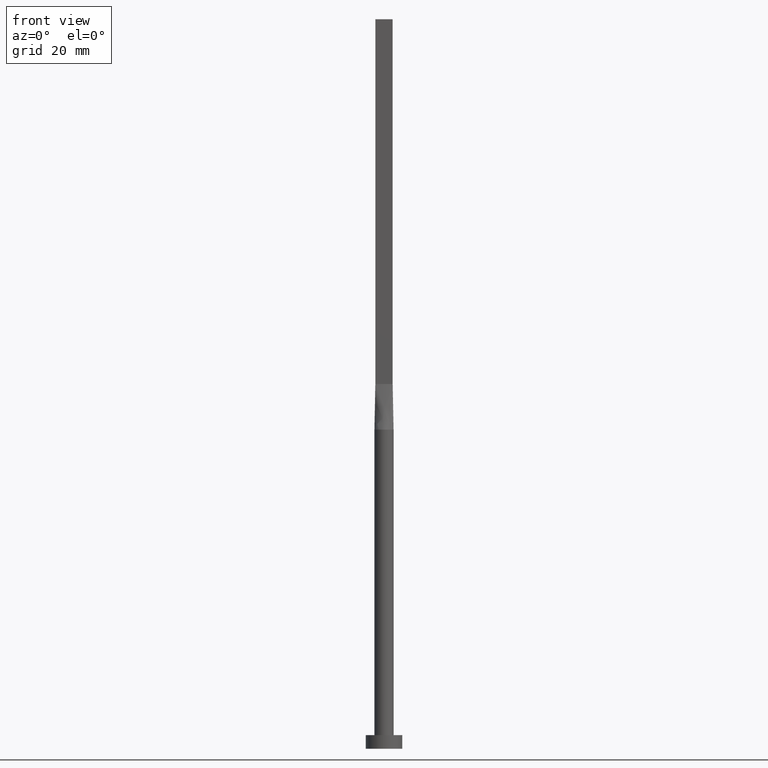
[diagram: clean part render]
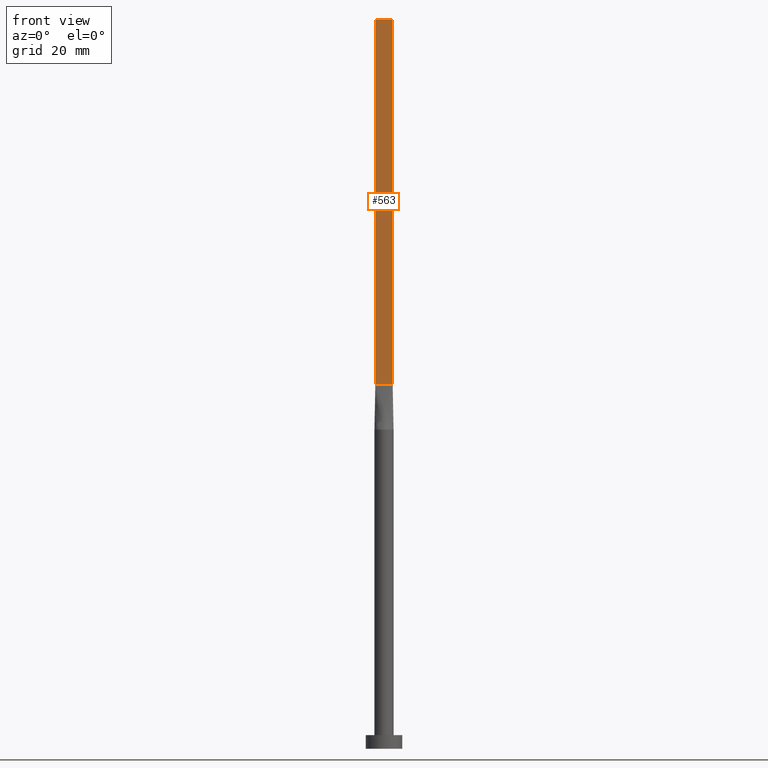
[diagram: same view with one face highlighted and labeled with its STEP entity id]
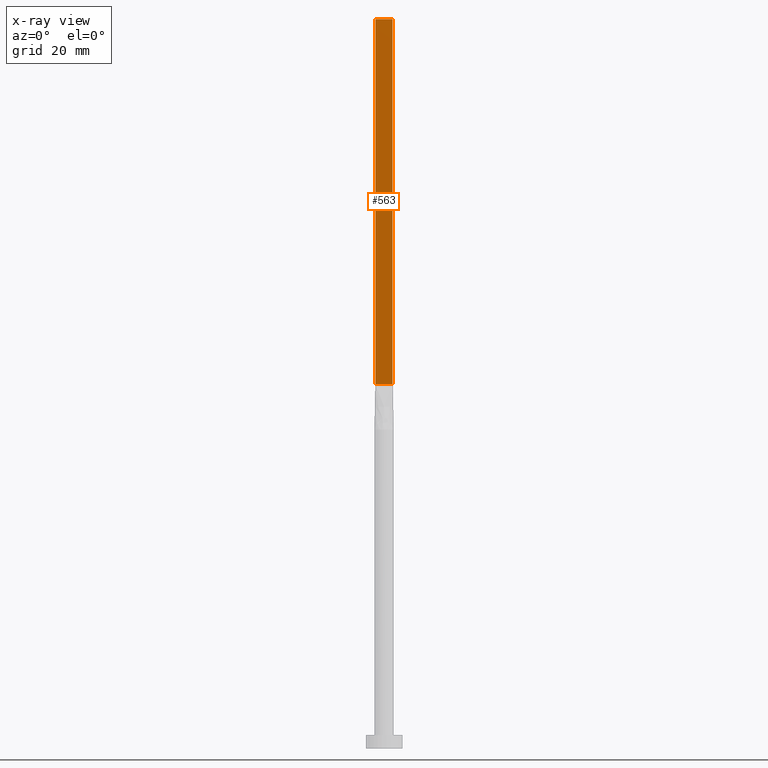
[diagram: x-ray of the same camera — body ghosted, the highlighted face saturated]
A machine part, front view. The second image highlights one B-rep face of the part: STEP entity #563.
The next image is the same camera in x-ray: the body ghosted, the highlighted face saturated — about 0% of this face is hidden behind the body in this view.
In plain terms, the highlighted planar face has unit normal (0, 1, -0).
Its self-contained STEP definition (entity closure, byte-faithful):
#14 = AXIS2_PLACEMENT_3D ( 'NONE', #229, #189, #356 ) ;
#34 = CARTESIAN_POINT ( 'NONE',  ( -1.899999999999999911, -0.2499999999999995837, 160.0000000000000000 ) ) ;
#47 = EDGE_LOOP ( 'NONE', ( #129, #495, #311, #297 ) ) ;
#69 = LINE ( 'NONE', #111, #339 ) ;
#71 = DIRECTION ( 'NONE',  ( -0.000000000000000000, -0.000000000000000000, -1.000000000000000000 ) ) ;
#83 = CARTESIAN_POINT ( 'NONE',  ( 1.899999999999999023, -0.2499999999999997780, 160.0000000000000000 ) ) ;
#88 = DIRECTION ( 'NONE',  ( -0.000000000000000000, -0.000000000000000000, -1.000000000000000000 ) ) ;
#111 = CARTESIAN_POINT ( 'NONE',  ( 1.899999999999999023, -0.2499999999999997780, 160.0000000000000000 ) ) ;
#115 = VECTOR ( 'NONE', #88, 1000.000000000000000 ) ;
#117 = EDGE_CURVE ( 'NONE', #238, #322, #69, .T. ) ;
#129 = ORIENTED_EDGE ( 'NONE', *, *, #328, .T. ) ;
#148 = VECTOR ( 'NONE', #435, 1000.000000000000000 ) ;
#181 = PLANE ( 'NONE',  #14 ) ;
#189 = DIRECTION ( 'NONE',  ( 5.706327223607918787E-17, 1.000000000000000000, -0.000000000000000000 ) ) ;
#215 = CARTESIAN_POINT ( 'NONE',  ( 1.899999999999999023, -0.2499999999999997780, 80.00000000000000000 ) ) ;
#217 = VERTEX_POINT ( 'NONE', #489 ) ;
#218 = CARTESIAN_POINT ( 'NONE',  ( -1.899999999999999911, -0.2499999999999995837, 160.0000000000000000 ) ) ;
#220 = CARTESIAN_POINT ( 'NONE',  ( -1.899999999999999911, -0.2499999999999995837, 160.0000000000000000 ) ) ;
#229 = CARTESIAN_POINT ( 'NONE',  ( -1.899999999999999911, -0.2499999999999995837, 160.0000000000000000 ) ) ;
#238 = VERTEX_POINT ( 'NONE', #83 ) ;
#251 = VECTOR ( 'NONE', #528, 1000.000000000000000 ) ;
#258 = LINE ( 'NONE', #389, #148 ) ;
#297 = ORIENTED_EDGE ( 'NONE', *, *, #549, .T. ) ;
#311 = ORIENTED_EDGE ( 'NONE', *, *, #413, .F. ) ;
#314 = VERTEX_POINT ( 'NONE', #34 ) ;
#322 = VERTEX_POINT ( 'NONE', #215 ) ;
#328 = EDGE_CURVE ( 'NONE', #217, #322, #258, .T. ) ;
#339 = VECTOR ( 'NONE', #71, 1000.000000000000000 ) ;
#356 = DIRECTION ( 'NONE',  ( -1.000000000000000000, 5.706327223607918787E-17, 0.000000000000000000 ) ) ;
#357 = LINE ( 'NONE', #218, #251 ) ;
#389 = CARTESIAN_POINT ( 'NONE',  ( -1.899999999999999911, -0.2499999999999995837, 80.00000000000000000 ) ) ;
#396 = FACE_OUTER_BOUND ( 'NONE', #47, .T. ) ;
#413 = EDGE_CURVE ( 'NONE', #314, #238, #357, .T. ) ;
#435 = DIRECTION ( 'NONE',  ( 1.000000000000000000, -5.706327223607918787E-17, 0.000000000000000000 ) ) ;
#489 = CARTESIAN_POINT ( 'NONE',  ( -1.899999999999999911, -0.2499999999999995837, 80.00000000000000000 ) ) ;
#492 = LINE ( 'NONE', #220, #115 ) ;
#495 = ORIENTED_EDGE ( 'NONE', *, *, #117, .F. ) ;
#528 = DIRECTION ( 'NONE',  ( 1.000000000000000000, -5.706327223607920020E-17, 0.000000000000000000 ) ) ;
#549 = EDGE_CURVE ( 'NONE', #314, #217, #492, .T. ) ;
#563 = ADVANCED_FACE ( 'NONE', ( #396 ), #181, .F. ) ;